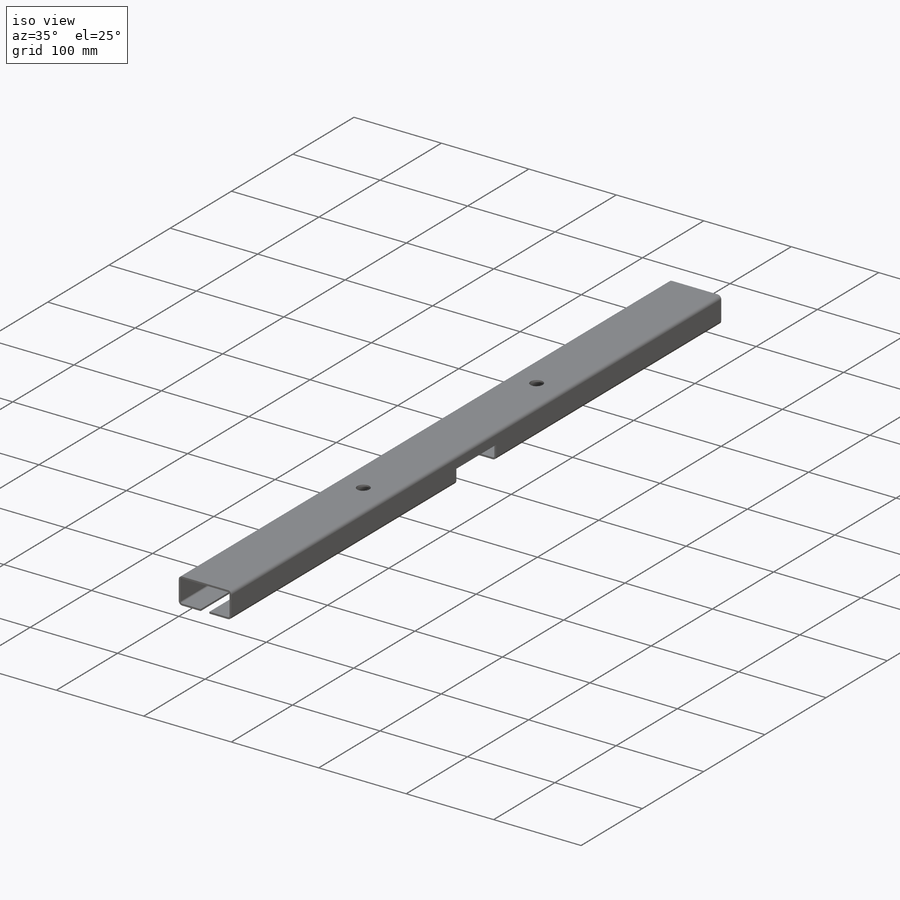
[diagram: iso view]
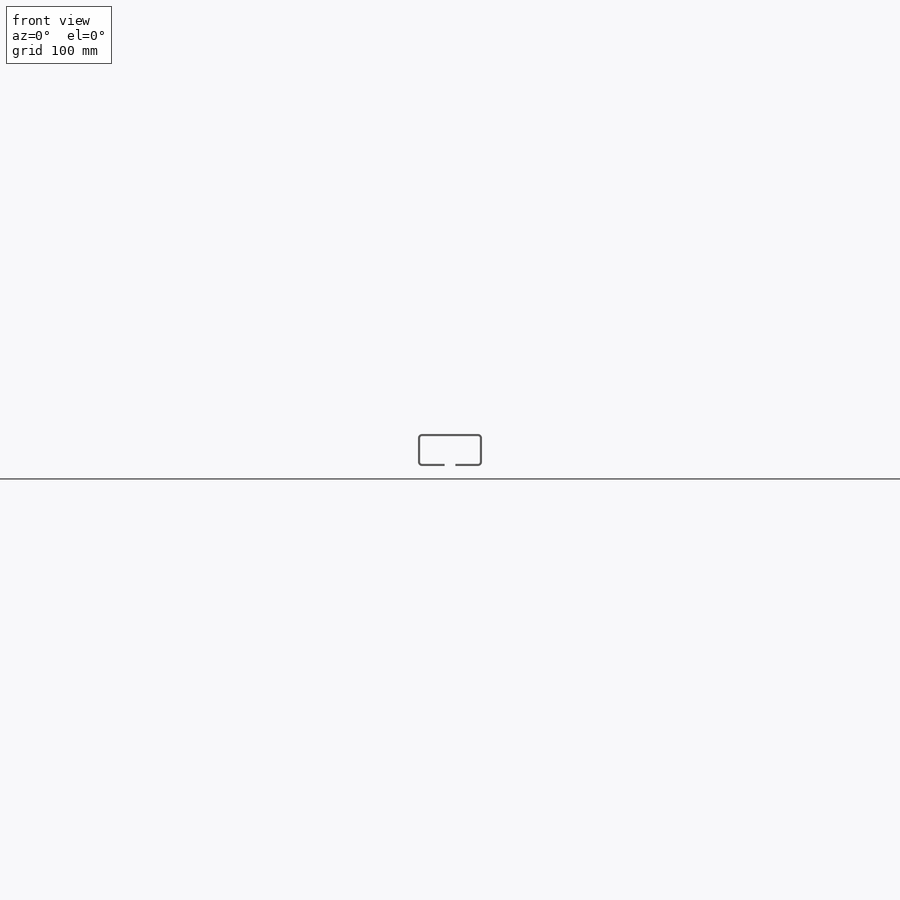
[diagram: front view]
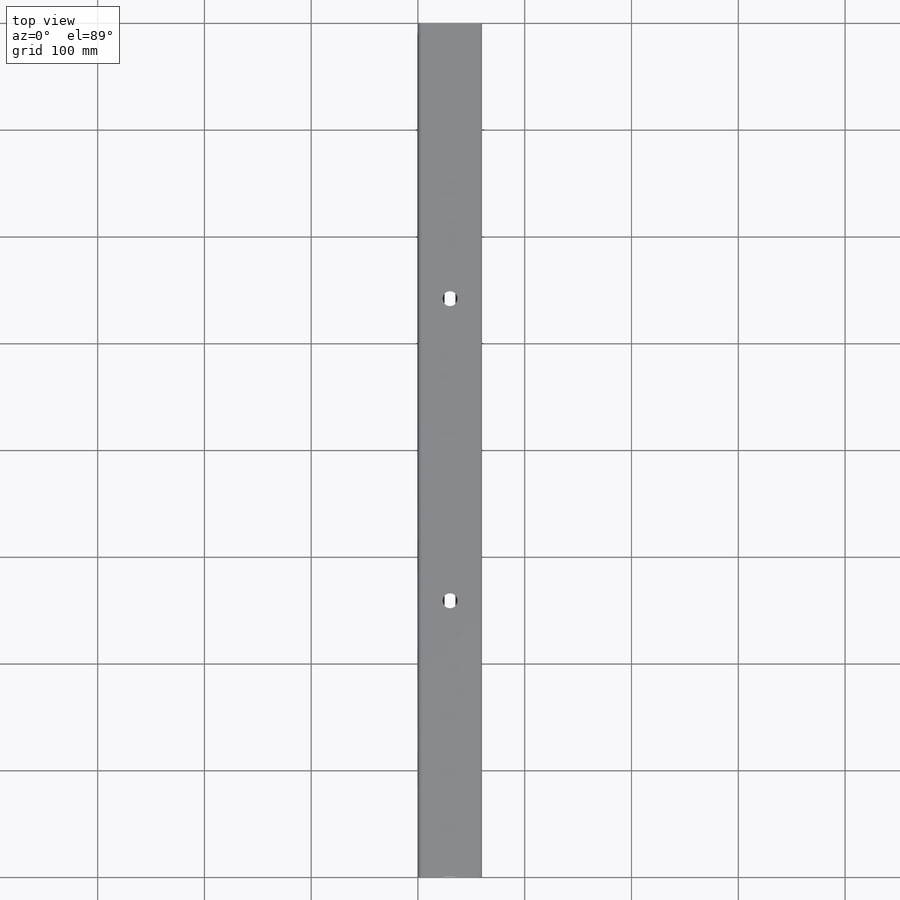
[diagram: top view]
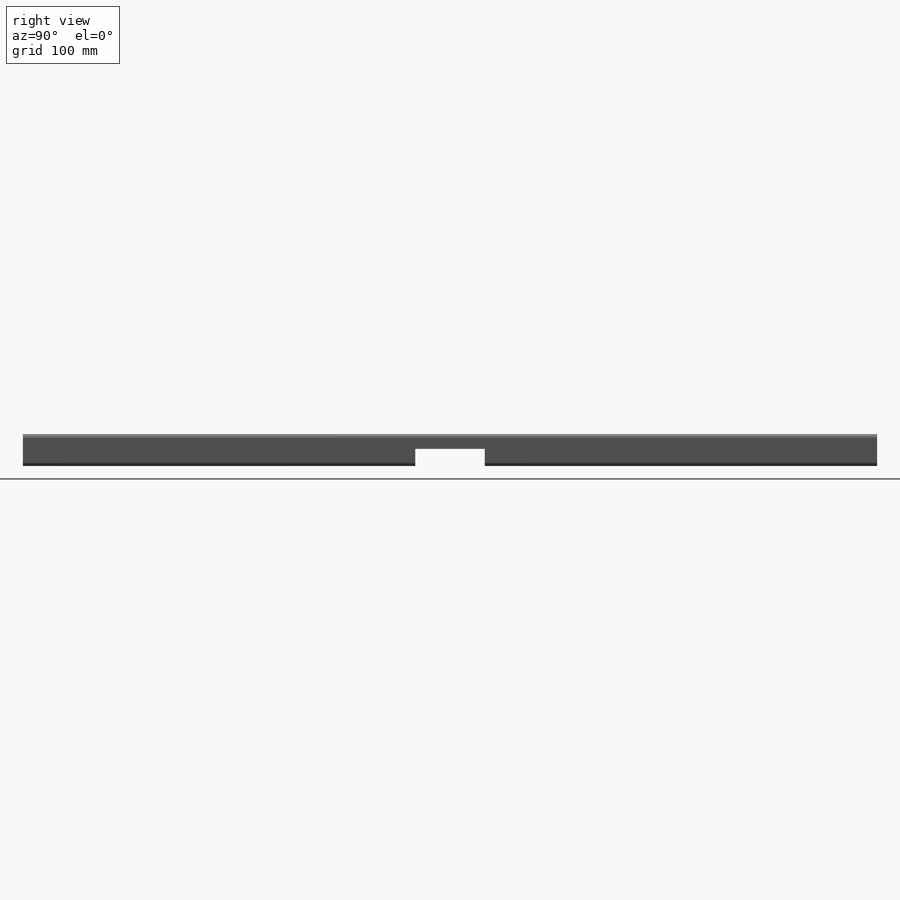
[diagram: right view]
SOLIDWORKS PART (.sldprt)
format: sldprt  version: not decoded by parser v0  size: 279,552 bytes
history: native  units: mm
features: shell x6, plane x3, cut_extrude x3, material x1, sketch x1, extrude x1, sheet_metal_op x1 (+8 scaffold rows collapsed)
feature tree (24):
  scaffold x8  (default folders/planes/origin — collapsed)
  material  "Matériau <non spécifié>"
  plane  "Plan de face"
  plane  "Plan de dessus"
  plane  "Plan de droite"
  sketch  "Esquisse1"  dims[D1=60.0mm]
  extrude  "Extrusion1"  Depth=800mm
  shell  "Coque1"  Thickness=2mm
  shell  "Esquisse3"  [1 undecoded]
  cut_extrude  "Enlèv. mat.-Extru.1"  Depth=926mm
  sheet_metal_op  "Tôlerie 1"
  shell  "Esquisse-Angle1"  Thickness=0 Pli dans angle1=0 Pli dans angle3=0 Pli dans angle4=0
  shell  "Esquisse-Plate1"  Thickness=0mm
  shell  "Esquisse4"  Thickness=14.5mm
  cut_extrude  "Enlèv. mat.-Extru.2"  Depth=16mm
  shell  "Esquisse5"  Thickness=60mm
  cut_extrude  "Enlèv. mat.-Extru.3"  Depth=16mm
decode coverage: 10 of 12 modeling features carry decoded parameters
note: 1 parameter value undecoded
note: suppression state not decoded; provenance and decode notes live in map.json
